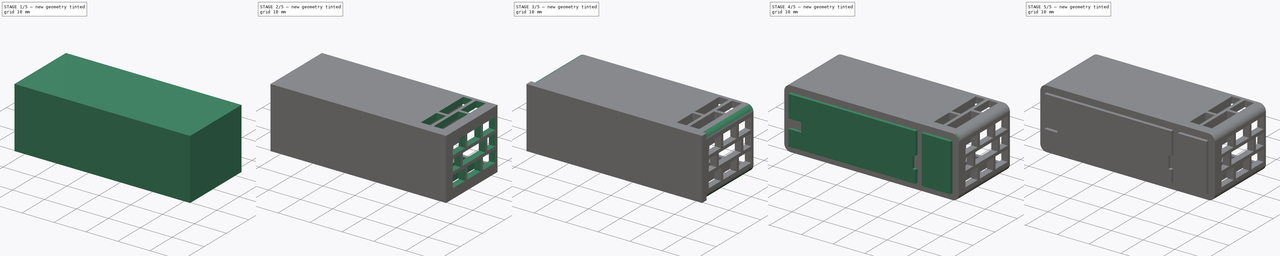
[diagram: build sequence overview — one tinted view per stage of 5, left to right]
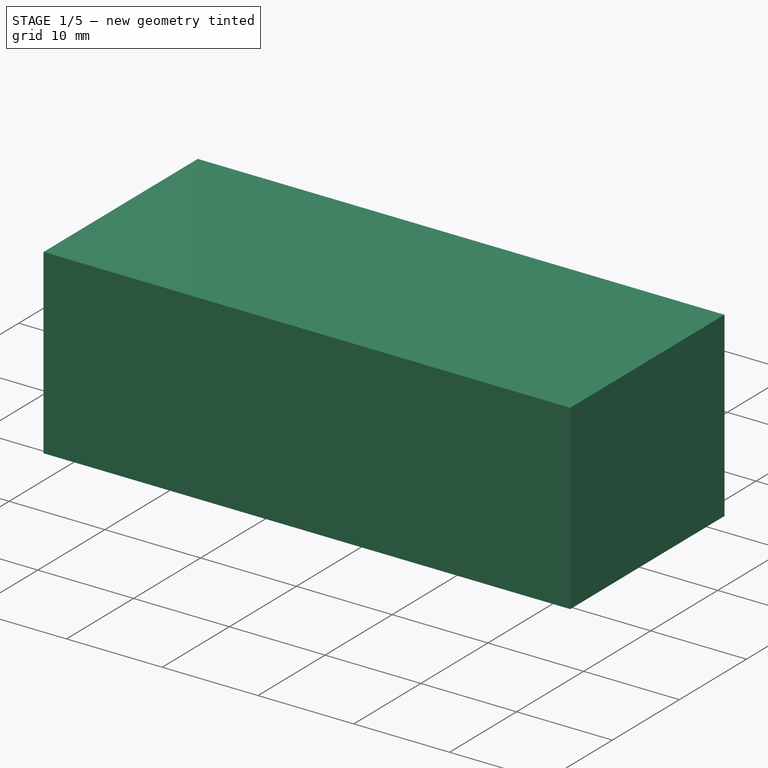
[diagram: stage 1 of 5 — iso view after this stage's code; geometry added in this stage tinted green]
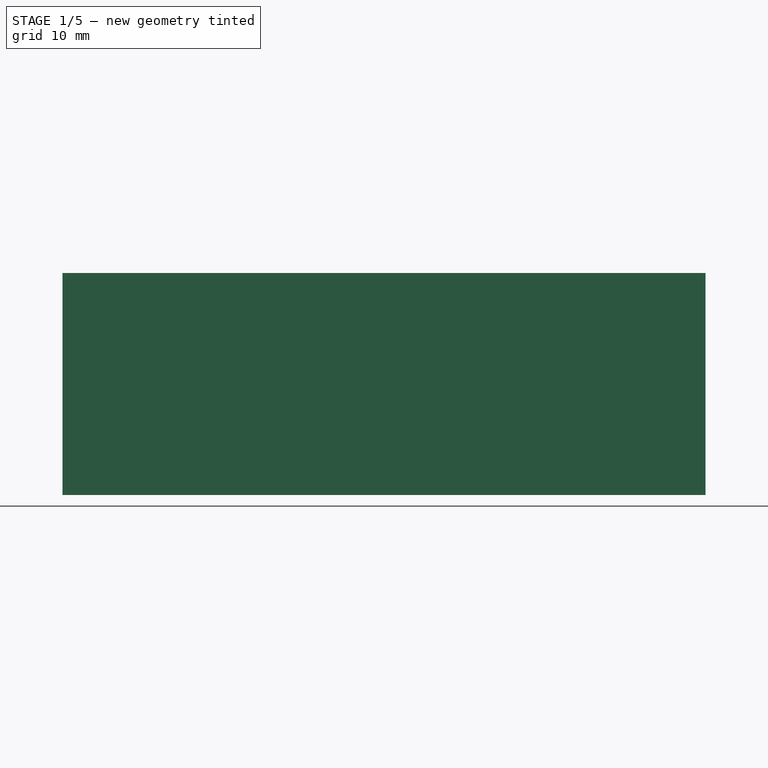
[diagram: stage 1 of 5 — front view after this stage's code; geometry added in this stage tinted green]
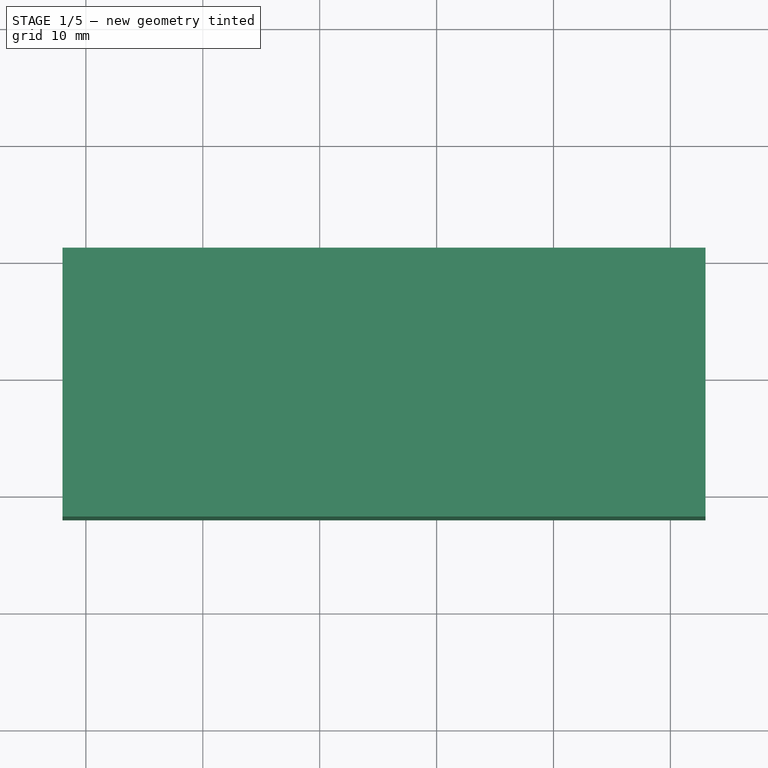
[diagram: stage 1 of 5 — top view after this stage's code; geometry added in this stage tinted green]
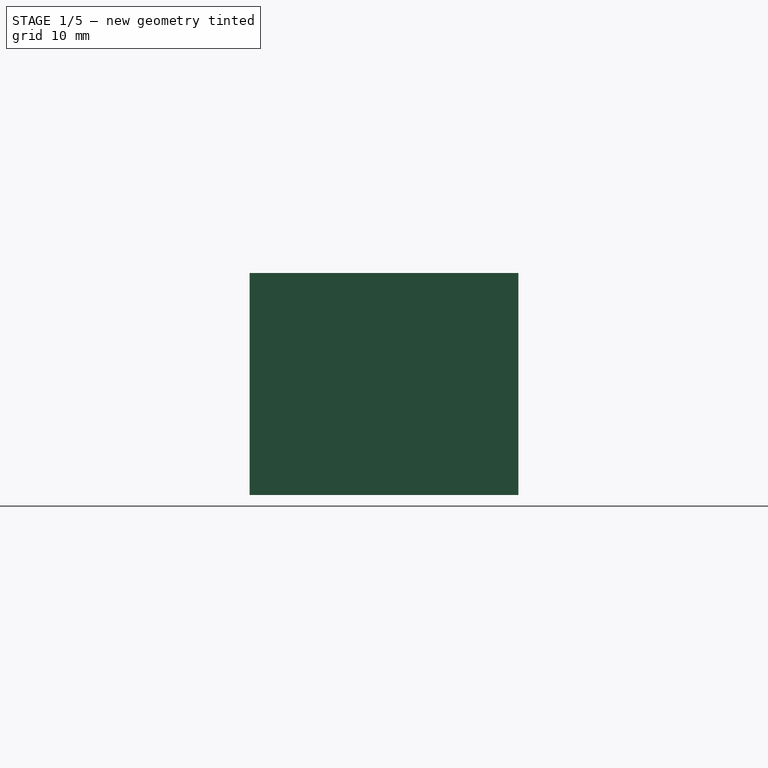
[diagram: stage 1 of 5 — right view after this stage's code; geometry added in this stage tinted green]
FCSTD DOCUMENT  (FreeCAD 0.20R29177 (Git))
Label: temperature_sensor_v2
License: All rights reserved
LicenseURL: http://en.wikipedia.org/wiki/All_rights_reserved
objects: PartDesign::AdditiveBox×6, PartDesign::Body×5, Sketcher::SketchObject×4, PartDesign::Pocket×4, PartDesign::Fillet×4, PartDesign::SubtractiveBox×2, PartDesign::Plane×2, PartDesign::Line×1, Part::Part2DObjectPython×1, PartDesign::Pad×1
note: 47 computed .brp shape members not serialized (recipe doc carries the construction recipe); baked Part::Feature solids carry a one-line shape summary decoded from their .brp

FEATURE [PartDesign::Body] Body002  label="BME280"
  Group = -> [Box003]
  Origin = -> Origin002
  Placement = pos=(46,1.5,13) rot=(0,1,0;1.5708rad)
  Tip = -> Box003
FEATURE [PartDesign::AdditiveBox] Box004
  AttacherType = Attacher::AttachEngine3D
  AttachmentOffset = pos=(-2,-2,-2) rot=(0,0,1;0rad)
  Height = 19
  Length = 55
  MapMode = 5
  Placement = pos=(-2,-2,-2) rot=(0,0,1;0rad)
  Support = -> [XY_Plane003]
  Width = 23
FEATURE [Sketcher::SketchObject] Sketch005
  ExternalGeometry = -> [Box004]
  FullyConstrained = true
  MapMode = 5
  Placement = pos=(-2,21,-2) rot=(0,0.707107,0.707107;3.14159rad)
  Support = -> [Box004]
  sketch-geometry (16):
    g0: LineSegment StartX=-2 StartY=2 StartZ=0 EndX=-2 EndY=7 EndZ=0
    g1: LineSegment StartX=-2 StartY=7 StartZ=0 EndX=-6 EndY=7 EndZ=0
    g2: LineSegment StartX=-6 StartY=7 StartZ=0 EndX=-6 EndY=10 EndZ=0
    g3: LineSegment StartX=-6 StartY=10 StartZ=0 EndX=-2 EndY=10 EndZ=0
    g4: LineSegment StartX=-2 StartY=10 StartZ=0 EndX=-2 EndY=17 EndZ=0
    g5: LineSegment StartX=-2 StartY=17 StartZ=0 EndX=-42 EndY=17 EndZ=0
    g6: LineSegment StartX=-53 StartY=17 StartZ=0 EndX=-53 EndY=2 EndZ=0
    g7: LineSegment StartX=-53 StartY=2 StartZ=0 EndX=-44 EndY=2 EndZ=0
    g8: LineSegment StartX=-44 StartY=17 StartZ=0 EndX=-44 EndY=2 EndZ=0
    g9: LineSegment StartX=-42 StartY=17 StartZ=0 EndX=-42 EndY=10 EndZ=0
    g10: LineSegment StartX=-44 StartY=17 StartZ=0 EndX=-53 EndY=17 EndZ=0
    g11: LineSegment StartX=-42 StartY=2 StartZ=0 EndX=-2 EndY=2 EndZ=0
    g12: LineSegment StartX=-42 StartY=6 StartZ=0 EndX=-41 EndY=6 EndZ=0
    g13: LineSegment StartX=-41 StartY=6 StartZ=0 EndX=-41 EndY=10 EndZ=0
    g14: LineSegment StartX=-41 StartY=10 StartZ=0 EndX=-42 EndY=10 EndZ=0
    g15: LineSegment StartX=-42 StartY=6 StartZ=0 EndX=-42 EndY=2 EndZ=0
  constraints (48):
    c: Coincident(g1,g0)
    c: Coincident(g2,g1)
    c: Vertical(g2)
    c: Coincident(g3,g2)
    c: Horizontal(g3)
    c: Coincident(g4,g3)
    c: Vertical(g4)
    c: Coincident(g5,g4)
    c: Horizontal(g5)
    c: Coincident(g6,g10)
    c: Vertical(g6)
    c: Coincident(g7,g6)
    c: Coincident(g11,g0)
    c: Horizontal(g7)
    c: Vertical(g8)
    c: Vertical(g9)
    c: Coincident(g5,g9)
    c: Coincident(g10,g8)
    c: Coincident(g7,g8)
    c: Coincident(g11,g15)
    c: Horizontal(g10)
    c: DistanceY(g6,g-4) = 2
    c: DistanceY(g-4,g6) = 2
    c: DistanceX(g-4,g6) = 2
    c: DistanceX(g8,g5) = 2
    c: DistanceX(g10,g10) = 9
    c: Coincident(g13,g12)
    c: Vertical(g13)
    c: Coincident(g14,g13)
    c: Coincident(g9,g14)
    c: Coincident(g15,g12)
    c: Horizontal(g7,g11)
    c: Horizontal(g8,g5)
    c: DistanceX(g0,g-1) = 2
    c: Vertical(g0)
    c: Horizontal(g1)
    c: DistanceY(g0,g0) = 5
    c: DistanceX(g1,g1) = 4
    c: DistanceY(g2,g2) = 3
    c: Horizontal(g11)
    c: Vertical(g9,g12)
    c: Vertical(g15)
    c: Horizontal(g14)
    c: Horizontal(g12)
    c: Horizontal(g13,g2)
    c: DistanceY(g13,g13) = 4
    c: DistanceX(g14,g14) = 1
    c: Vertical(g0,g3)
FEATURE [PartDesign::Pocket] Pocket
  BaseFeature = -> Box004
  Direction = (0,-1,2e-16)
  Length = 21
  Length2 = 5
  Placement = pos=(-2,-2,-2) rot=(0,0,1;0rad)
  Profile = -> Sketch005
  ReferenceAxis = -> Sketch005 [N_Axis]
  Type = 0
FEATURE [PartDesign::SubtractiveBox] Box006
  AttacherType = Attacher::AttachEngine3D
  AttachmentOffset = pos=(39,17,0) rot=(0,0,1;0rad)
  BaseFeature = -> Pocket
  Height = 4
  Length = 4
  MapMode = 5
  Placement = pos=(39,17,0) rot=(0,0,1;0rad)
  Support = -> [XY_Plane003]
  Width = 5
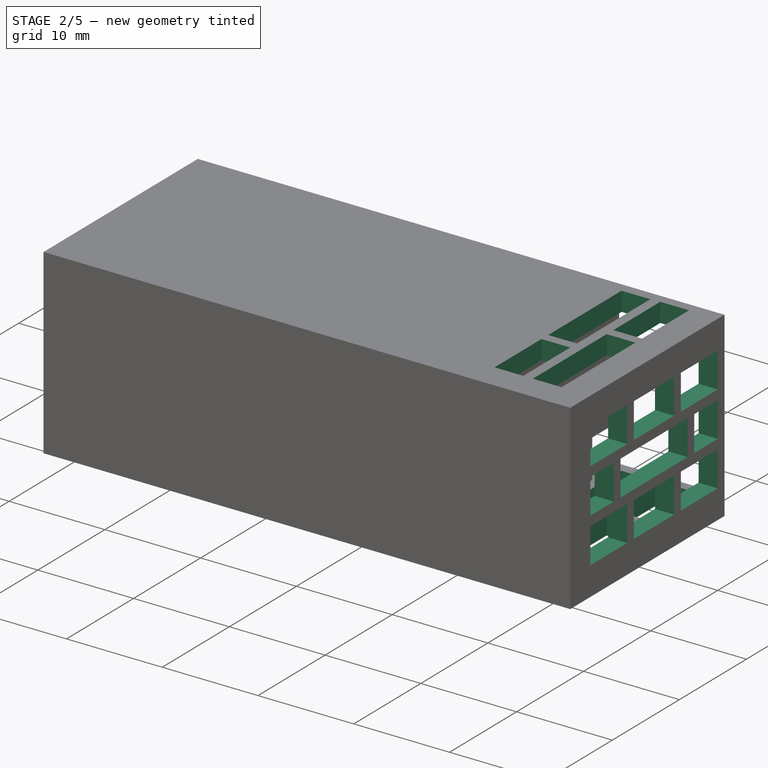
[diagram: stage 2 of 5 — iso view after this stage's code; geometry added in this stage tinted green]
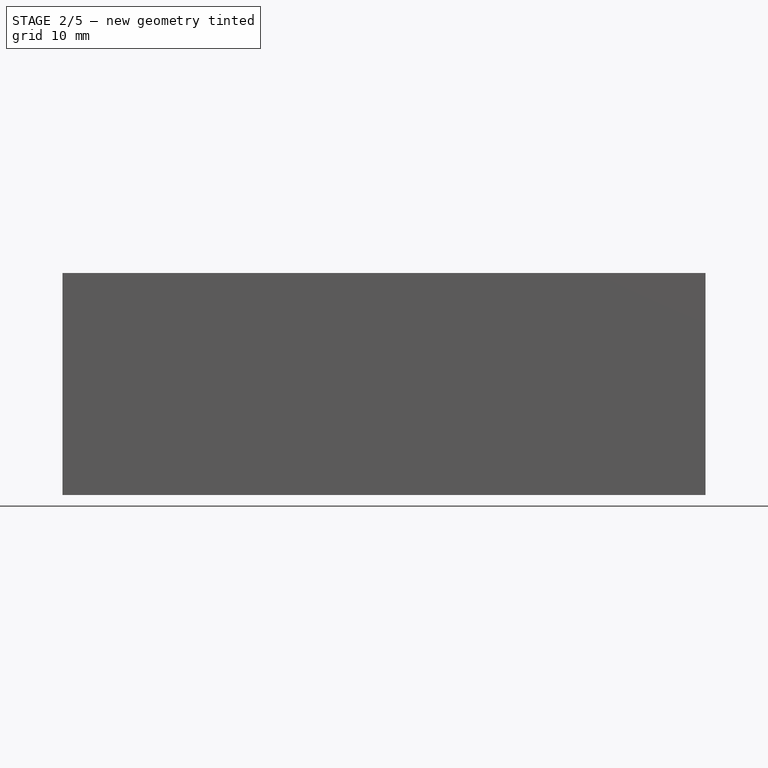
[diagram: stage 2 of 5 — front view after this stage's code; geometry added in this stage tinted green]
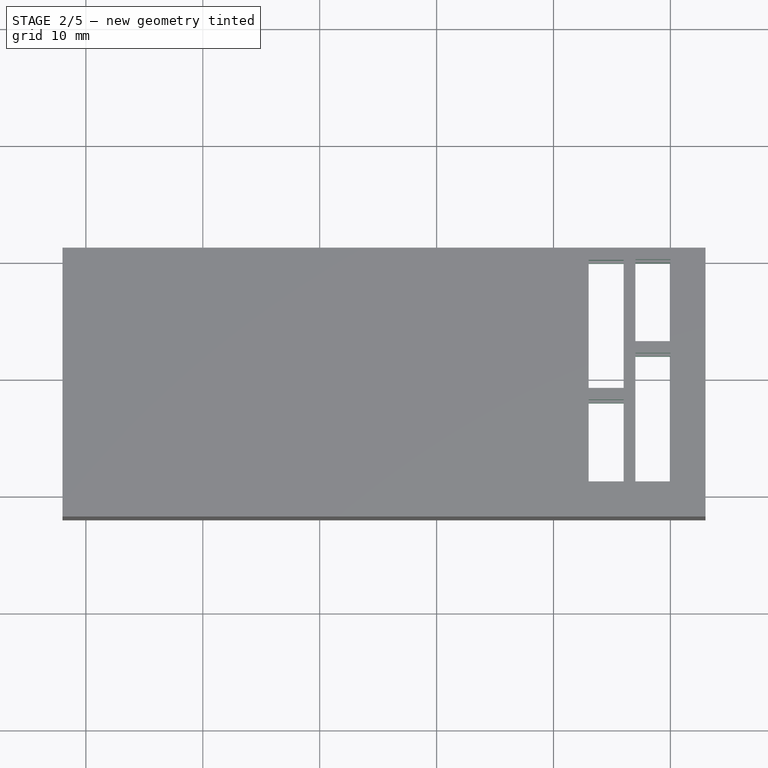
[diagram: stage 2 of 5 — top view after this stage's code; geometry added in this stage tinted green]
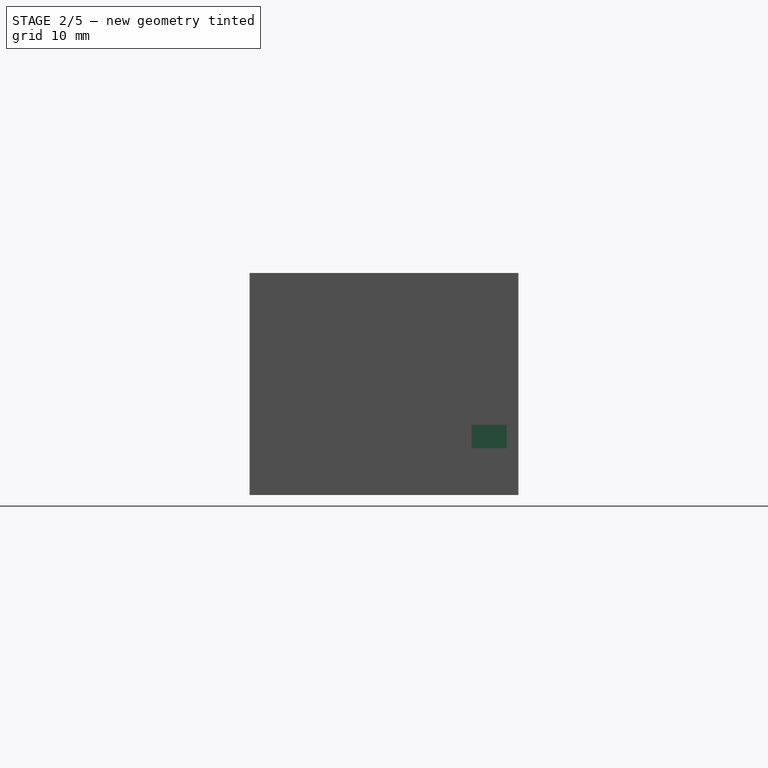
[diagram: stage 2 of 5 — right view after this stage's code; geometry added in this stage tinted green]
FEATURE [PartDesign::Line] DatumLine
  AttacherType = Attacher::AttachEngineLine
  AttachmentOffset = pos=(1,0,0) rot=(0,0,1;0rad)
  Length = 20
  MapMode = 42
  Placement = pos=(39,10.5,7.5) rot=(0.57735,0.57735,0.57735;2.0944rad)
  ResizeMode = 0
  Support = -> [Box006]
FEATURE [Sketcher::SketchObject] Sketch
  ExternalGeometry = -> [DatumLine]
  FullyConstrained = true
  MapMode = 5
  Placement = pos=(53,17,0) rot=(0.57735,0.57735,0.57735;2.0944rad)
  Support = -> [Box006]
  sketch-geometry (40):
    g0: LineSegment StartX=-17 StartY=15 StartZ=0 EndX=4 EndY=15 EndZ=0
    g1: LineSegment StartX=4 StartY=15 StartZ=0 EndX=4 EndY=0 EndZ=0
    g2: LineSegment StartX=4 StartY=0 StartZ=0 EndX=-17 EndY=0 EndZ=0
    g3: LineSegment StartX=-17 StartY=0 StartZ=0 EndX=-17 EndY=15 EndZ=0
    g4: LineSegment StartX=-16 StartY=14 StartZ=0 EndX=-10.5 EndY=14 EndZ=0
    g5: LineSegment StartX=3 StartY=14 StartZ=0 EndX=3 EndY=10.3333 EndZ=0
    g6: LineSegment StartX=3 StartY=10.3333 StartZ=0 EndX=-2.5 EndY=10.3333 EndZ=0
    g7: LineSegment StartX=-16 StartY=10.3333 StartZ=0 EndX=-16 EndY=14 EndZ=0
    g8: LineSegment StartX=-16 StartY=9.33333 StartZ=0 EndX=-12.5 EndY=9.33333 EndZ=0
    g9: LineSegment StartX=3 StartY=9.33333 StartZ=0 EndX=3 EndY=5.66667 EndZ=0
    g10: LineSegment StartX=3 StartY=5.66667 StartZ=0 EndX=-0.5 EndY=5.66667 EndZ=0
    g11: LineSegment StartX=-16 StartY=5.66667 StartZ=0 EndX=-16 EndY=9.33333 EndZ=0
    g12: LineSegment StartX=-16 StartY=4.66667 StartZ=0 EndX=-10.5 EndY=4.66667 EndZ=0
    g13: LineSegment StartX=3 StartY=4.66667 StartZ=0 EndX=3 EndY=1 EndZ=0
    g14: LineSegment StartX=3 StartY=1 StartZ=0 EndX=-2.5 EndY=1 EndZ=0
    g15: LineSegment StartX=-16 StartY=1 StartZ=0 EndX=-16 EndY=4.66667 EndZ=0
    g16: LineSegment StartX=-12.5 StartY=9.33333 StartZ=0 EndX=-12.5 EndY=5.66667 EndZ=0
    g17: LineSegment StartX=-11.5 StartY=5.66667 StartZ=0 EndX=-11.5 EndY=9.33333 EndZ=0
    g18: LineSegment StartX=-0.5 StartY=5.66667 StartZ=0 EndX=-0.5 EndY=9.33333 EndZ=0
    g19: LineSegment StartX=-1.5 StartY=9.33333 StartZ=0 EndX=-1.5 EndY=5.66667 EndZ=0
    g20: LineSegment StartX=-2.5 StartY=4.66667 StartZ=0 EndX=-2.5 EndY=1 EndZ=0
    g21: LineSegment StartX=-3.5 StartY=1 StartZ=0 EndX=-3.5 EndY=4.66667 EndZ=0
    g22: LineSegment StartX=-9.5 StartY=1 StartZ=0 EndX=-9.5 EndY=4.66667 EndZ=0
    g23: LineSegment StartX=-10.5 StartY=4.66667 StartZ=0 EndX=-10.5 EndY=1 EndZ=0
    g24: LineSegment StartX=-10.5 StartY=10.3333 StartZ=0 EndX=-10.5 EndY=14 EndZ=0
    g25: LineSegment StartX=-9.5 StartY=14 StartZ=0 EndX=-9.5 EndY=10.3333 EndZ=0
    g26: LineSegment StartX=-3.5 StartY=10.3333 StartZ=0 EndX=-3.5 EndY=14 EndZ=0
    g27: LineSegment StartX=-2.5 StartY=14 StartZ=0 EndX=-2.5 EndY=10.3333 EndZ=0
    g28: LineSegment StartX=-2.5 StartY=14 StartZ=0 EndX=3 EndY=14 EndZ=0
    g29: LineSegment StartX=-9.5 StartY=14 StartZ=0 EndX=-3.5 EndY=14 EndZ=0
    g30: LineSegment StartX=-10.5 StartY=10.3333 StartZ=0 EndX=-16 EndY=10.3333 EndZ=0
    g31: LineSegment StartX=-3.5 StartY=10.3333 StartZ=0 EndX=-9.5 EndY=10.3333 EndZ=0
    g32: LineSegment StartX=-0.5 StartY=9.33333 StartZ=0 EndX=3 EndY=9.33333 EndZ=0
    g33: LineSegment StartX=-1.5 StartY=5.66667 StartZ=0 EndX=-11.5 EndY=5.66667 EndZ=0
    g34: LineSegment StartX=-2.5 StartY=4.66667 StartZ=0 EndX=3 EndY=4.66667 EndZ=0
    g35: LineSegment StartX=-3.5 StartY=1 StartZ=0 EndX=-9.5 EndY=1 EndZ=0
    g36: LineSegment StartX=-10.5 StartY=1 StartZ=0 EndX=-16 EndY=1 EndZ=0
    g37: LineSegment StartX=-9.5 StartY=4.66667 StartZ=0 EndX=-3.5 EndY=4.66667 EndZ=0
    g38: LineSegment StartX=-12.5 StartY=5.66667 StartZ=0 EndX=-16 EndY=5.66667 EndZ=0
    g39: LineSegment StartX=-11.5 StartY=9.33333 StartZ=0 EndX=-1.5 EndY=9.33333 EndZ=0
  constraints (119):
    c: Coincident(g0,g1)
    c: Coincident(g1,g2)
    c: Coincident(g2,g3)
    c: Coincident(g3,g0)
    c: Horizontal(g0)
    c: Horizontal(g2)
    c: Vertical(g1)
    c: Vertical(g3)
    c: PointOnObject(g1,g-1)
    c: Symmetric(g0,g1,g-3)
    c: DistanceX(g2,g2) = 21
    c: Coincident(g28,g5)
    c: Coincident(g5,g6)
    c: Coincident(g30,g7)
    c: Coincident(g7,g4)
    c: Horizontal(g4)
    c: Horizontal(g6)
    c: Vertical(g5)
    c: Vertical(g7)
    c: Coincident(g32,g9)
    c: Coincident(g9,g10)
    c: Coincident(g38,g11)
    c: Coincident(g11,g8)
    c: Horizontal(g8)
    c: Horizontal(g10)
    c: Vertical(g9)
    c: Vertical(g11)
    c: Coincident(g34,g13)
    c: Coincident(g13,g14)
    c: Coincident(g36,g15)
    c: Coincident(g15,g12)
    c: Horizontal(g12)
    c: Horizontal(g14)
    c: Vertical(g13)
    c: Vertical(g15)
    c: Equal(g7,g11)
    c: Equal(g11,g15)
    c: DistanceY(g4,g0) = 1
    c: DistanceY(g2,g36) = 1
    c: DistanceY(g12,g38) = 1
    c: DistanceY(g8,g30) = 1
    c: DistanceX(g2,g36) = 1
    c: DistanceX(g13,g1) = 1
    c: Vertical(g38,g12)
    c: Vertical(g8,g30)
    c: Vertical(g34,g9)
    c: Vertical(g32,g5)
    c: Vertical(g16)
    c: Vertical(g17)
    c: Vertical(g18)
    c: Vertical(g19)
    c: Vertical(g20)
    c: Vertical(g22)
    c: Vertical(g23)
    c: Vertical(g24)
    c: Vertical(g25)
    c: Vertical(g26)
    c: Vertical(g27)
    c: DistanceX(g23,g22) = 1
    c: Vertical(g21)
    c: Coincident(g29,g26)
    c: Coincident(g28,g27)
    c: Coincident(g4,g24)
    c: Coincident(g29,g25)
    c: Coincident(g31,g25)
    c: Coincident(g30,g24)
    c: Coincident(g6,g27)
    c: Coincident(g31,g26)
    c: Coincident(g39,g19)
    c: Coincident(g32,g18)
    c: Coincident(g10,g18)
    c: Coincident(g33,g19)
    c: Coincident(g37,g21)
    c: Coincident(g34,g20)
    c: Coincident(g14,g20)
    c: Coincident(g35,g21)
    c: Coincident(g12,g23)
    c: Coincident(g37,g22)
    c: Coincident(g8,g16)
    c: Coincident(g39,g17)
    c: DistanceX(g21,g14) = 1
    c: Equal(g36,g14)
    c: DistanceX(g35,g35) = 6
    c: Coincident(g23,g36)
    c: Coincident(g35,g22)
    c: Horizontal(g21,g14)
    c: Horizontal(g35)
    c: Horizontal(g23,g22)
    c: Horizontal(g36)
    c: Horizontal(g12,g22)
    c: Horizontal(g37)
    c: Horizontal(g21,g20)
    c: Horizontal(g34)
    c: Vertical(g12,g24)
    c: Vertical(g22,g25)
    c: Vertical(g26,g21)
    c: Vertical(g20,g6)
    c: Horizontal(g4,g25)
    c: Horizontal(g29)
    c: Horizontal(g26,g27)
    c: Horizontal(g28)
    c: Horizontal(g24,g25)
    c: Horizontal(g31)
    c: Horizontal(g30)
    c: Horizontal(g26,g6)
    c: DistanceX(g8,g17) = 1
    c: DistanceX(g19,g18) = 1
    c: DistanceX(g39,g39) = 10
    c: Equal(g8,g32)
    c: Coincident(g38,g16)
    c: Coincident(g33,g17)
    c: Horizontal(g38)
    c: Horizontal(g16,g17)
    c: Horizontal(g33)
    c: Horizontal(g19,g10)
    c: Horizontal(g8,g17)
    c: Horizontal(g39)
    c: Horizontal(g19,g18)
    c: Horizontal(g32)
FEATURE [PartDesign::Pocket] Pocket001
  BaseFeature = -> Box006
  Direction = (-1,0,0)
  Length = 5
  Length2 = 5
  Placement = pos=(39,17,0) rot=(0,0,1;0rad)
  Profile = -> Sketch
  ReferenceAxis = -> Sketch [N_Axis]
  Type = 0
FEATURE [PartDesign::Plane] DatumPlane
  Length = 62.49
  MapMode = 3
  Placement = pos=(39,10.5,7.5) rot=(0.707107,0.707107,0;3.14159rad)
  ResizeMode = 0
  Support = -> [DatumLine]
  Width = 90.49
FEATURE [Sketcher::SketchObject] Sketch006
  ExternalGeometry = -> [Pocket001]
  FullyConstrained = false
  MapMode = 5
  Placement = pos=(39,10.5,7.5) rot=(0.707107,0.707107,0;3.14159rad)
  Support = -> [DatumPlane]
  sketch-geometry (16):
    g0: LineSegment StartX=-9.5 StartY=11 StartZ=0 EndX=1.5 EndY=11 EndZ=0
    g1: LineSegment StartX=9.5 StartY=11 StartZ=0 EndX=9.5 EndY=8 EndZ=0
    g2: LineSegment StartX=9.43937 StartY=4 StartZ=0 EndX=-1.5 EndY=4 EndZ=0
    g3: LineSegment StartX=-9.5 StartY=4 StartZ=0 EndX=-9.5 EndY=7 EndZ=0
    g4: LineSegment StartX=-2.5 StartY=4 StartZ=0 EndX=-2.5 EndY=7 EndZ=0
    g5: LineSegment StartX=-1.5 StartY=4 StartZ=0 EndX=-1.5 EndY=7 EndZ=0
    g6: LineSegment StartX=2.5 StartY=11 StartZ=0 EndX=9.5 EndY=11 EndZ=0
    g7: LineSegment StartX=-2.5 StartY=4 StartZ=0 EndX=-9.5 EndY=4 EndZ=0
    g8: LineSegment StartX=-9.5 StartY=8 StartZ=0 EndX=1.5 EndY=8 EndZ=0
    g9: LineSegment StartX=-9.5 StartY=7 StartZ=0 EndX=-2.5 EndY=7 EndZ=0
    g10: LineSegment StartX=1.5 StartY=8 StartZ=0 EndX=1.5 EndY=11 EndZ=0
    g11: LineSegment StartX=2.5 StartY=8 StartZ=0 EndX=2.5 EndY=11 EndZ=0
    g12: LineSegment StartX=9.43937 StartY=7 StartZ=0 EndX=9.43937 EndY=4 EndZ=0
    g13: LineSegment StartX=-9.5 StartY=8 StartZ=0 EndX=-9.5 EndY=11 EndZ=0
    g14: LineSegment StartX=-1.5 StartY=7 StartZ=0 EndX=9.43937 EndY=7 EndZ=0
    g15: LineSegment StartX=2.5 StartY=8 StartZ=0 EndX=9.5 EndY=8 EndZ=0
  constraints (45):
    c: Coincident(g6,g1)
    c: Coincident(g12,g2)
    c: Coincident(g7,g3)
    c: Coincident(g13,g0)
    c: Horizontal(g2)
    c: Vertical(g1)
    c: Vertical(g3)
    c: DistanceX(g-3,g7) = 1
    c: DistanceY(g-3,g7) = 1
    c: DistanceY(g0,g-3) = 1
    c: Symmetric(g0,g6,g-2)
    c: Vertical(g4)
    c: Vertical(g5)
    c: Coincident(g0,g10)
    c: Coincident(g6,g11)
    c: Coincident(g2,g5)
    c: Coincident(g7,g4)
    c: Horizontal(g6)
    c: Horizontal(g7)
    c: Horizontal(g4,g2)
    c: DistanceX(g4,g2) = 1
    c: Horizontal(g8)
    c: Horizontal(g9)
    c: Coincident(g1,g15)
    c: Coincident(g12,g14)
    c: Coincident(g3,g9)
    c: Coincident(g13,g8)
    c: Coincident(g9,g4)
    c: Coincident(g14,g5)
    c: Coincident(g8,g10)
    c: Coincident(g15,g11)
    c: Equal(g12,g1)
    c: DistanceY(g12,g1) = 1
    c: Horizontal(g15)
    c: Horizontal(g14)
    c: Horizontal(g4,g5)
    c: Horizontal(g0)
    c: Horizontal(g8,g11)
    c: DistanceX(g0,g6) = 1
    c: Vertical(g10)
    c: Vertical(g11)
    c: Vertical(g13)
    c: Vertical(g8,g3)
    c: Equal(g7,g6)
    c: DistanceX(g0,g0) = 11
FEATURE [PartDesign::Pocket] Pocket002
  BaseFeature = -> Pocket001
  Direction = (0,0,1)
  Length = 5
  Length2 = 5
  Midplane = true
  Placement = pos=(39,17,0) rot=(0,0,1;0rad)
  Profile = -> Sketch006
  ReferenceAxis = -> Sketch006 [N_Axis]
  Type = 1
FEATURE [PartDesign::Body] Body004  label="CaseCap"
  Group = -> [Box005,Clone2D,Pad,Fillet002,Fillet003]
  Origin = -> Origin004
  Placement = pos=(0,23,0) rot=(0,0,1;0rad)
  Tip = -> Fillet003
FEATURE [PartDesign::Plane] DatumPlane001
  Length = 62.49
  MapMode = 4
  Placement = pos=(39,10.5,7.5) rot=(0.57735,0.57735,0.57735;4.18879rad)
  ResizeMode = 0
  Support = -> [DatumLine]
  Width = 90.49
FEATURE [Sketcher::SketchObject] Sketch007
  ExternalGeometry = -> [DatumPlane001]
  FullyConstrained = true
  MapMode = 5
  Placement = pos=(-2,17,0) rot=(0.57735,-0.57735,-0.57735;2.0944rad)
  Support = -> [Pocket002]
  sketch-geometry (6):
    g0: LineSegment StartX=2.5 StartY=5 StartZ=0 EndX=10.5 EndY=5 EndZ=0
    g1: LineSegment StartX=10.5 StartY=5 StartZ=0 EndX=10.5 EndY=3 EndZ=0
    g2: LineSegment StartX=10.5 StartY=3 StartZ=0 EndX=9.5 EndY=2 EndZ=0
    g3: LineSegment StartX=9.5 StartY=2 StartZ=0 EndX=3.5 EndY=2 EndZ=0
    g4: LineSegment StartX=3.5 StartY=2 StartZ=0 EndX=2.5 EndY=3 EndZ=0
    g5: LineSegment StartX=2.5 StartY=3 StartZ=0 EndX=2.5 EndY=5 EndZ=0
  constraints (15):
    c: Coincident(g1,g0)
    c: Vertical(g1)
    c: Coincident(g2,g1)
    c: Coincident(g3,g2)
    c: Coincident(g4,g3)
    c: Coincident(g5,g4)
    c: Coincident(g5,g0)
    c: Symmetric(g0,g0,g-3)
    c: Symmetric(g4,g1,g-3)
    c: Symmetric(g2,g3,g-3)
    c: DistanceX(g0,g0) = 8
    c: DistanceY(g5,g5) = 2
    c: DistanceY(g3,g4) = 1
    c: DistanceX(g3,g3) = 6
    c: DistanceY(g-1,g0) = 5
FEATURE [PartDesign::Pocket] Pocket003
  BaseFeature = -> Pocket002
  Direction = (1,0,0)
  Length = 2
  Length2 = 5
  Placement = pos=(39,17,0) rot=(0,0,1;0rad)
  Profile = -> Sketch007
  ReferenceAxis = -> Sketch007 [N_Axis]
  Type = 0
FEATURE [PartDesign::SubtractiveBox] Box007
  AttacherType = Attacher::AttachEngine3D
  AttachmentOffset = pos=(-1,12,2) rot=(0,0,1;0rad)
  BaseFeature = -> Pocket003
  Height = 3
  Length = 2
  MapMode = 5
  Placement = pos=(-1,12,2) rot=(0,0,1;0rad)
  Support = -> [XY_Plane003]
  Width = 10
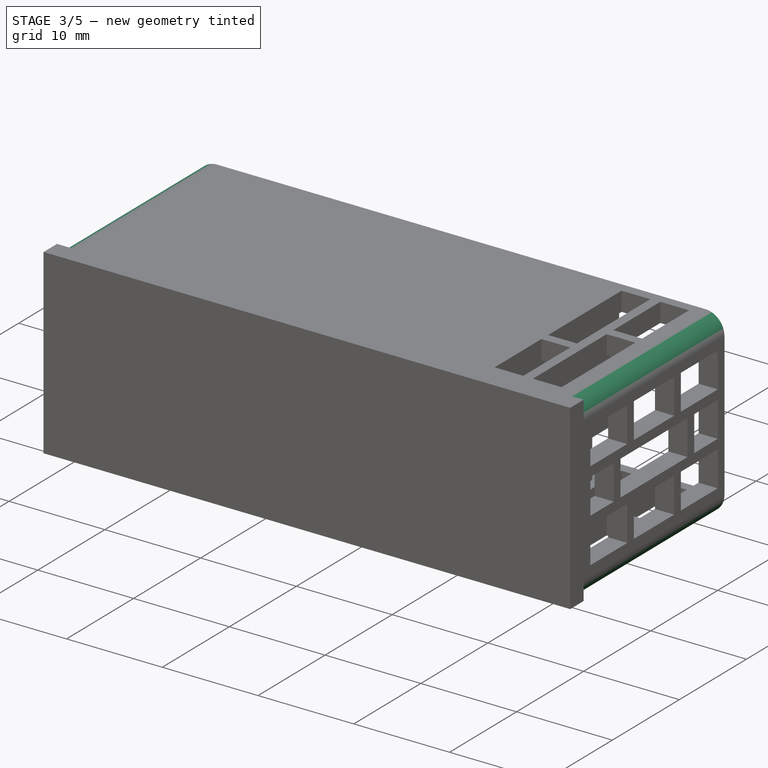
[diagram: stage 3 of 5 — iso view after this stage's code; geometry added in this stage tinted green]
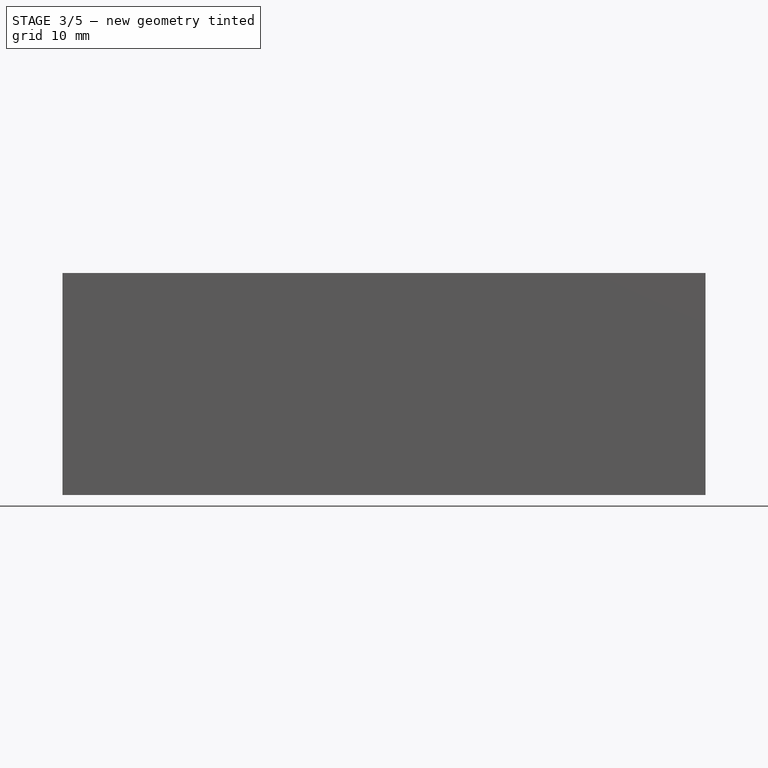
[diagram: stage 3 of 5 — front view after this stage's code; geometry added in this stage tinted green]
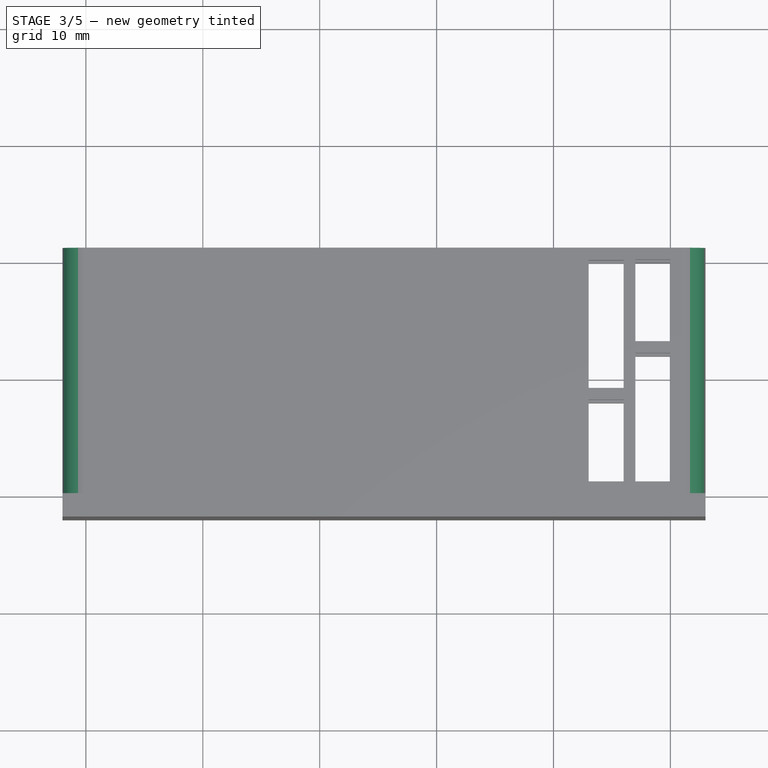
[diagram: stage 3 of 5 — top view after this stage's code; geometry added in this stage tinted green]
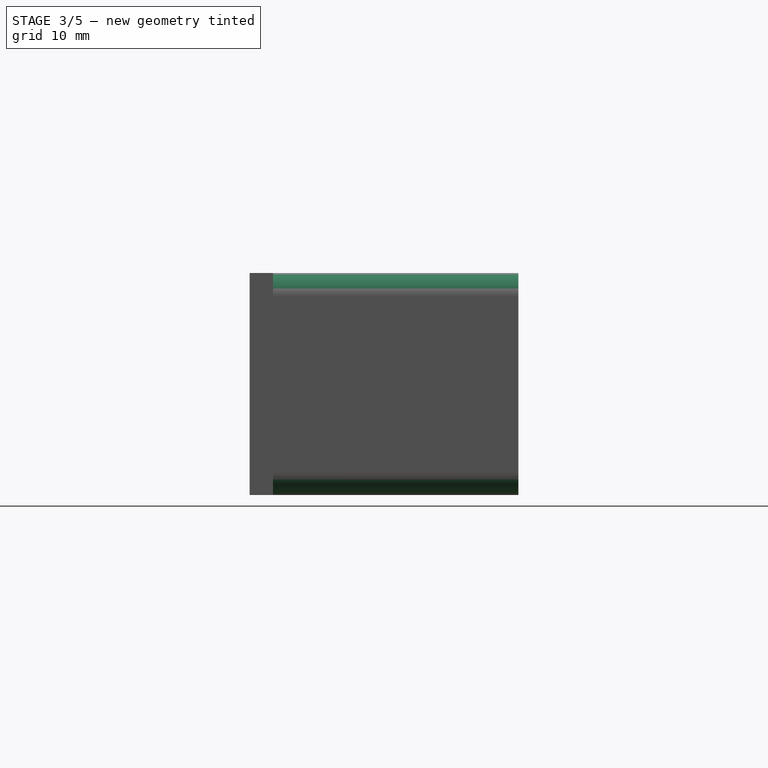
[diagram: stage 3 of 5 — right view after this stage's code; geometry added in this stage tinted green]
FEATURE [PartDesign::AdditiveBox] Box005
  AttacherType = Attacher::AttachEngine3D
  AttachmentOffset = pos=(-2,-2,-2) rot=(0,0,1;0rad)
  Height = 19
  Length = 55
  MapMode = 5
  Placement = pos=(-2,-2,-2) rot=(0,0,1;0rad)
  Support = -> [XY_Plane004]
  Width = 2
FEATURE [PartDesign::Fillet] Fillet
  Base = -> Box007 [Edge2,Edge3,Edge15,Edge33]
  BaseFeature = -> Box007
  Placement = pos=(-1,12,2) rot=(0,0,1;0rad)
  Radius = 2
  SupportTransform = false
  UseAllEdges = false
FEATURE [PartDesign::Fillet] Fillet004
  Base = -> Fillet [Face2]
  BaseFeature = -> Fillet
  Placement = pos=(-1,12,2) rot=(0,0,1;0rad)
  Radius = 1
  SupportTransform = false
  UseAllEdges = false
FEATURE [PartDesign::Body] Body003  label="CaseBody"
  Group = -> [Box004,Sketch005,Pocket,Box006,DatumLine,Sketch,Pocket001,DatumPlane,Sketch006,Pocket002,DatumPlane001,Sketch007,Pocket003,Box007,Fillet,Fillet004]
  Origin = -> Origin003
  Tip = -> Fillet004
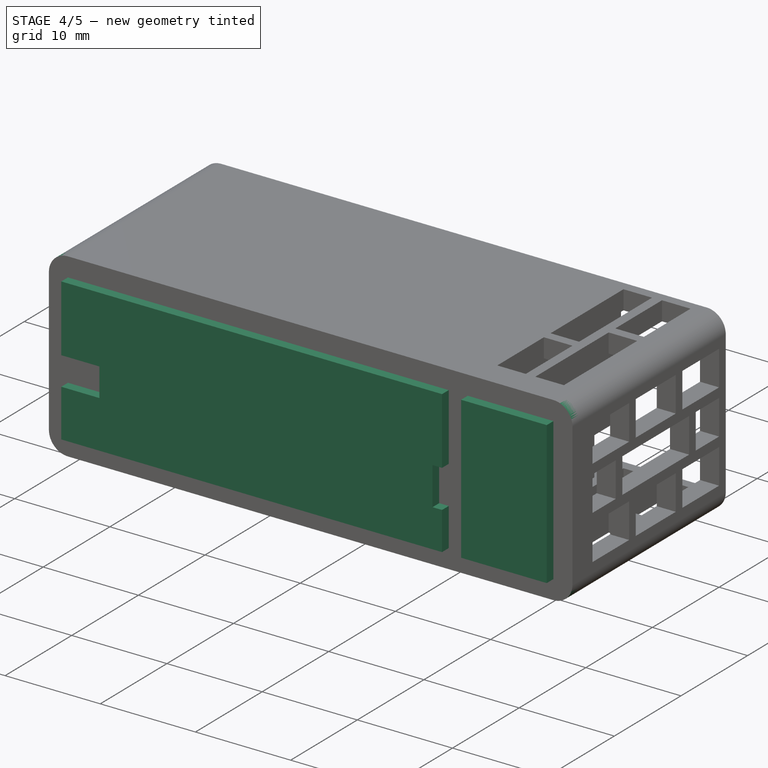
[diagram: stage 4 of 5 — iso view after this stage's code; geometry added in this stage tinted green]
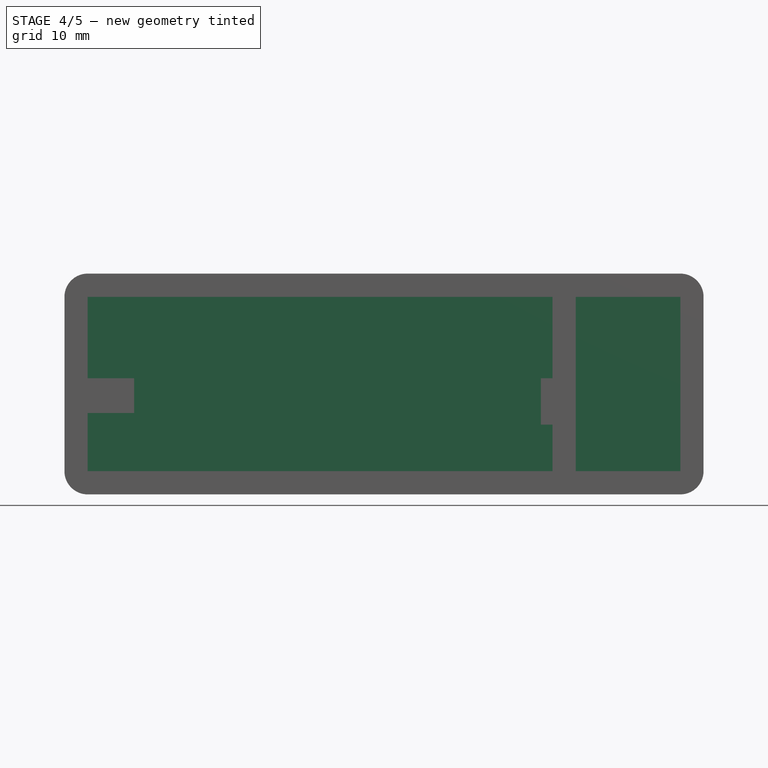
[diagram: stage 4 of 5 — front view after this stage's code; geometry added in this stage tinted green]
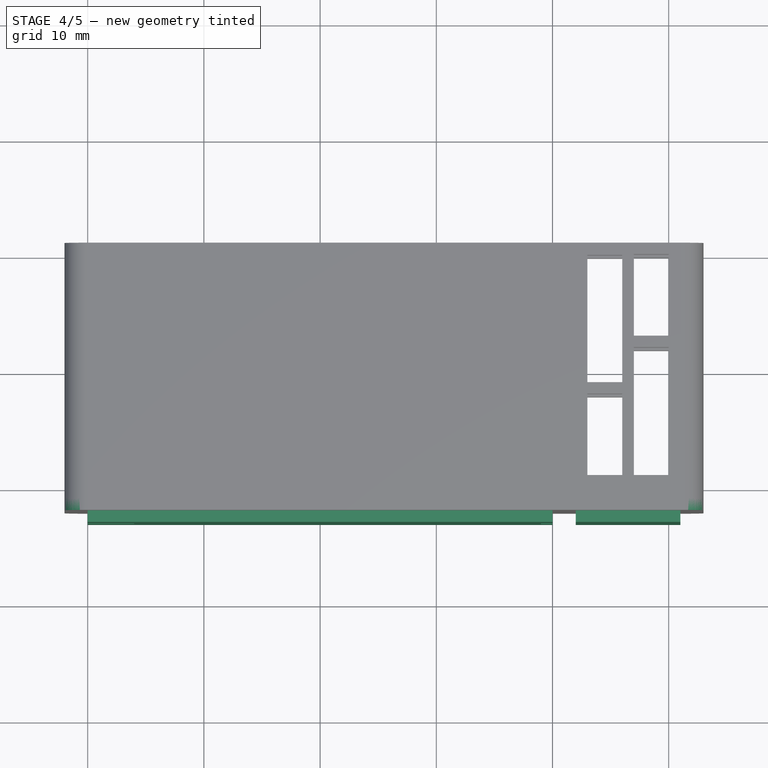
[diagram: stage 4 of 5 — top view after this stage's code; geometry added in this stage tinted green]
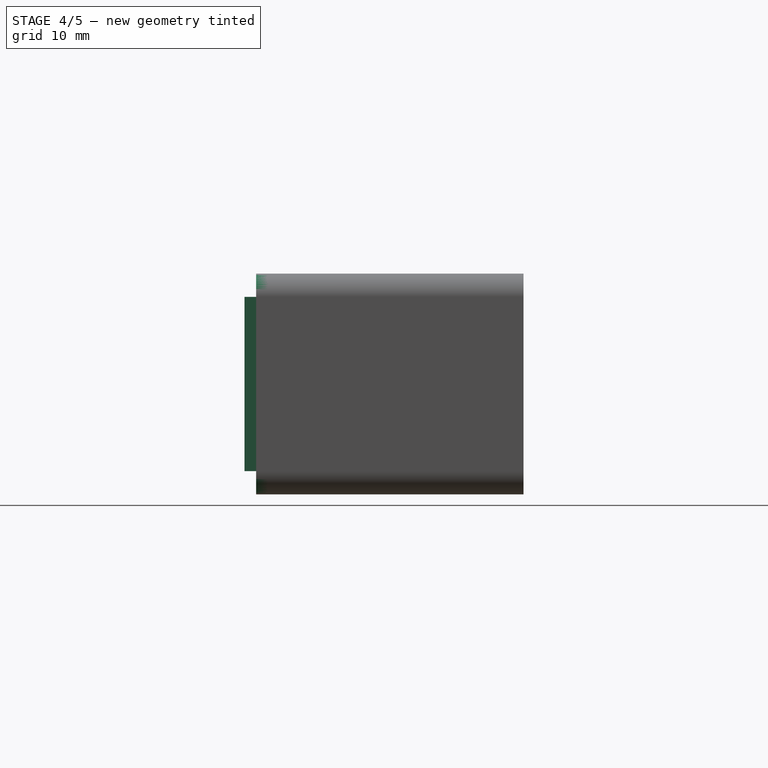
[diagram: stage 4 of 5 — right view after this stage's code; geometry added in this stage tinted green]
FEATURE [PartDesign::Body] Body001  label="JDY34"
  Group = -> [Box002]
  Origin = -> Origin001
  Placement = pos=(2,1,8) rot=(0,0,1;0rad)
  Tip = -> Box002
FEATURE [PartDesign::AdditiveBox] Box003
  AttacherType = Attacher::AttachEngine3D
  Height = 3
  Length = 13
  MapMode = 5
  Support = -> [XY_Plane002]
  Width = 16
FEATURE [Part::Part2DObjectPython] Clone2D  label="Sketch005 (2D)"  # Draft 2D object (typed FeaturePython)
  Fuse = false
  MapMode = 5
  Objects = -> [Sketch005]
  Placement = pos=(-2,-2,-2) rot=(0,0.707107,0.707107;3.14159rad)
  Scale = (1,1,1)
FEATURE [PartDesign::Pad] Pad
  BaseFeature = -> Box005
  Direction = (1e-16,1,-2e-16)
  Length = 1
  Length2 = 10
  Placement = pos=(-2,-2,-2) rot=(0,0,1;0rad)
  Profile = -> Clone2D
  ReferenceAxis = -> Clone2D [N_Axis]
  Reversed = true
  Type = 0
FEATURE [PartDesign::Fillet] Fillet002
  Base = -> Pad [Edge4,Edge2,Edge25,Edge28]
  BaseFeature = -> Pad
  Placement = pos=(-2,-2,-2) rot=(0,0,1;0rad)
  Radius = 2
  SupportTransform = false
  UseAllEdges = false
FEATURE [PartDesign::Fillet] Fillet003
  Base = -> Fillet002 [Face5]
  BaseFeature = -> Fillet002
  Placement = pos=(-2,-2,-2) rot=(0,0,1;0rad)
  Radius = 1
  SupportTransform = false
  UseAllEdges = false
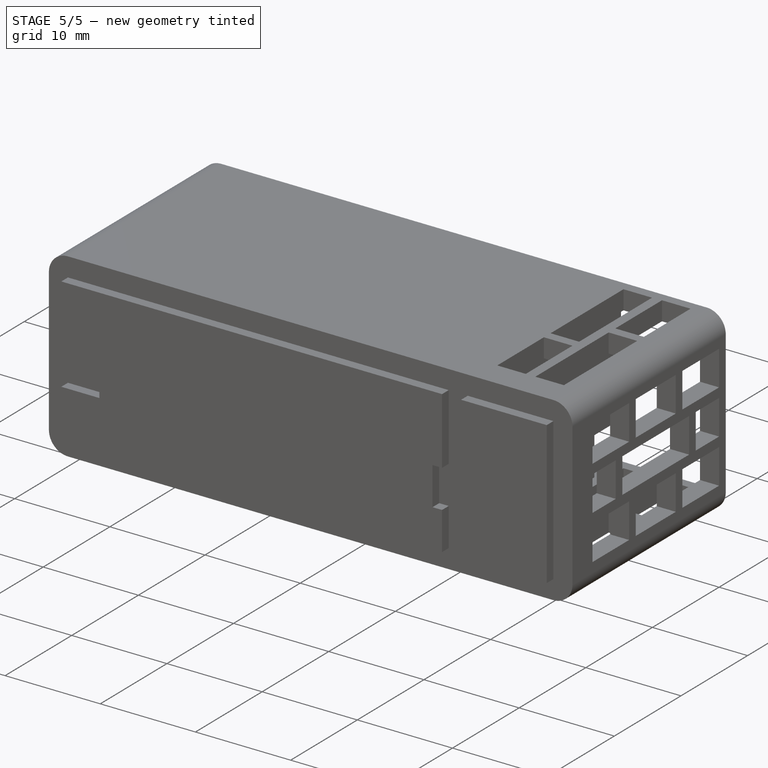
[diagram: stage 5 of 5 — iso view after this stage's code; geometry added in this stage tinted green]
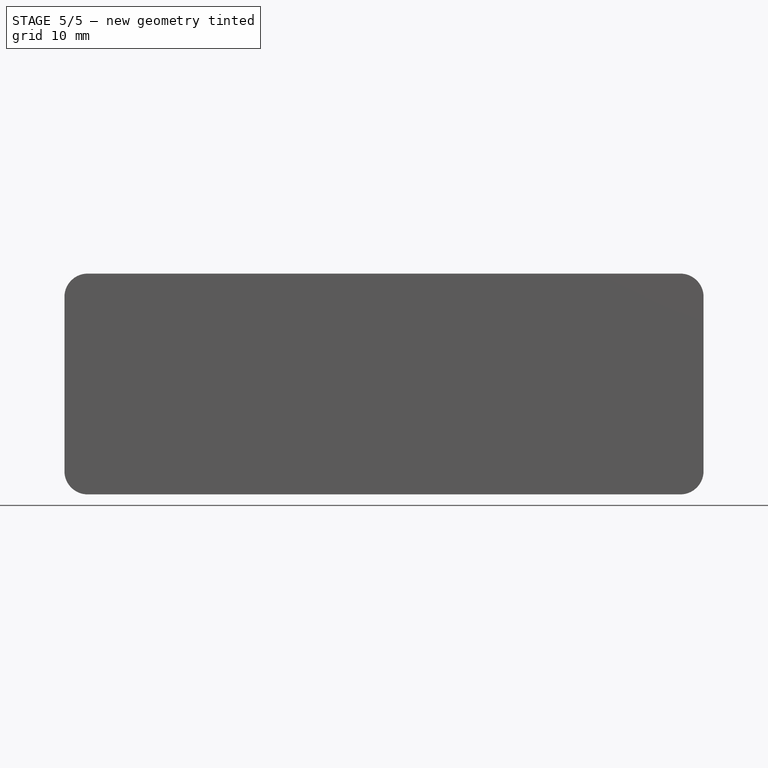
[diagram: stage 5 of 5 — front view after this stage's code; geometry added in this stage tinted green]
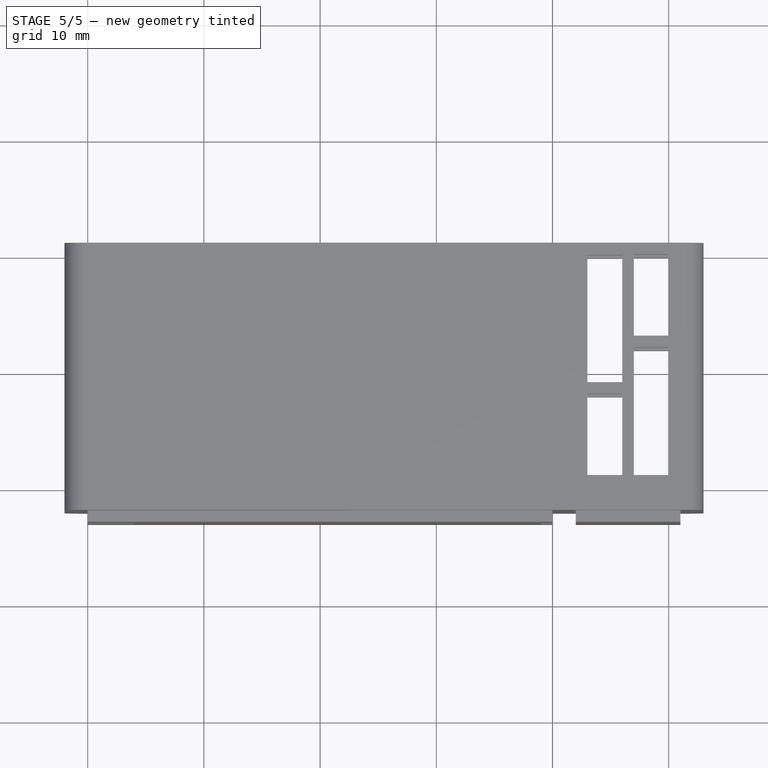
[diagram: stage 5 of 5 — top view after this stage's code; geometry added in this stage tinted green]
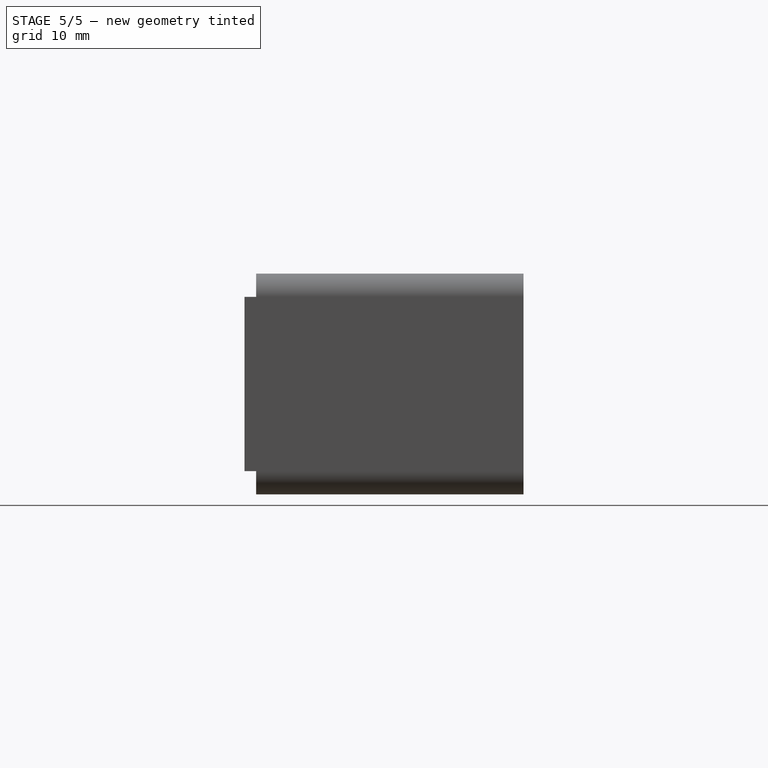
[diagram: stage 5 of 5 — right view after this stage's code; geometry added in this stage tinted green]
FEATURE [PartDesign::AdditiveBox] Box
  AttacherType = Attacher::AttachEngine3D
  Height = 4
  Length = 40
  Width = 19
FEATURE [PartDesign::AdditiveBox] Box001
  AttacherType = Attacher::AttachEngine3D
  AttachmentOffset = pos=(-1,5,2) rot=(0,0,1;0rad)
  BaseFeature = -> Box
  Height = 3
  Length = 6
  MapMode = 5
  Placement = pos=(-1,5,2) rot=(0,0,1;0rad)
  Support = -> [XY_Plane]
  Width = 8
FEATURE [PartDesign::Body] Body  label="STM32"
  Group = -> [Box,Box001]
  Origin = -> Origin
  Tip = -> Box001
FEATURE [PartDesign::AdditiveBox] Box002
  AttacherType = Attacher::AttachEngine3D
  Height = 5
  Length = 38
  MapMode = 5
  Support = -> [XY_Plane001]
  Width = 17
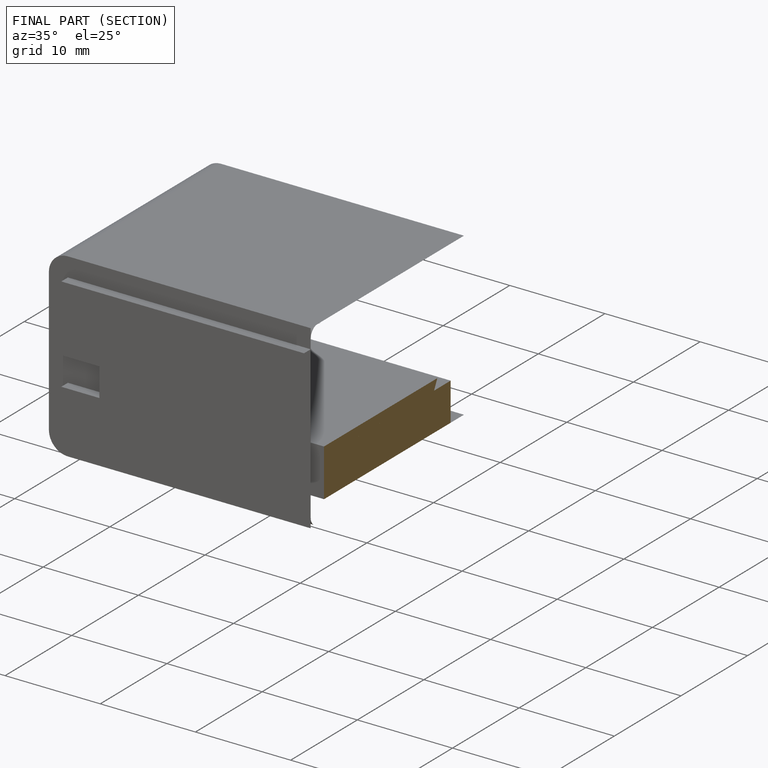
[diagram: finished part — half-section view (interior)]
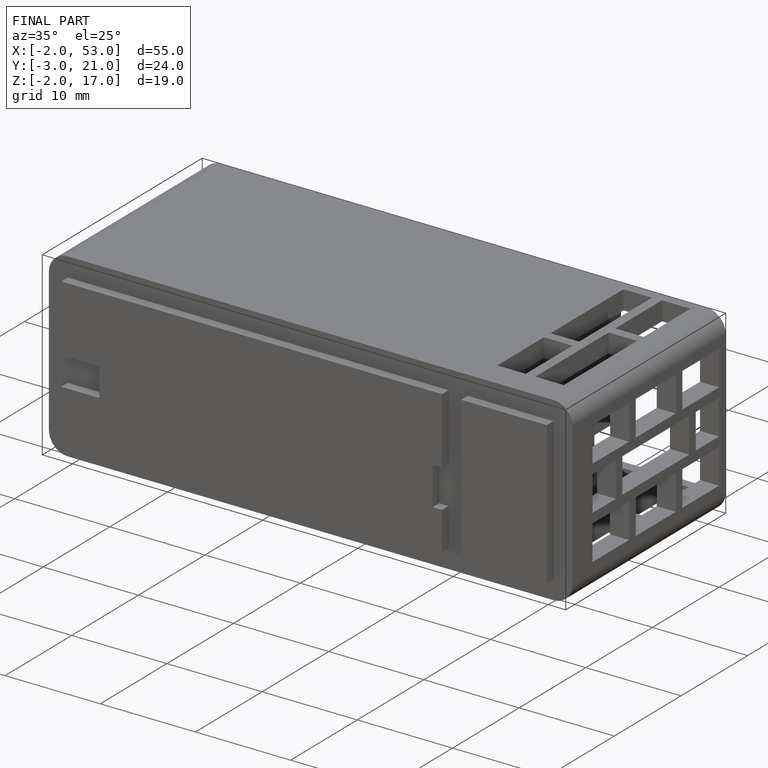
[diagram: finished part — iso view with bounding-box wireframe]
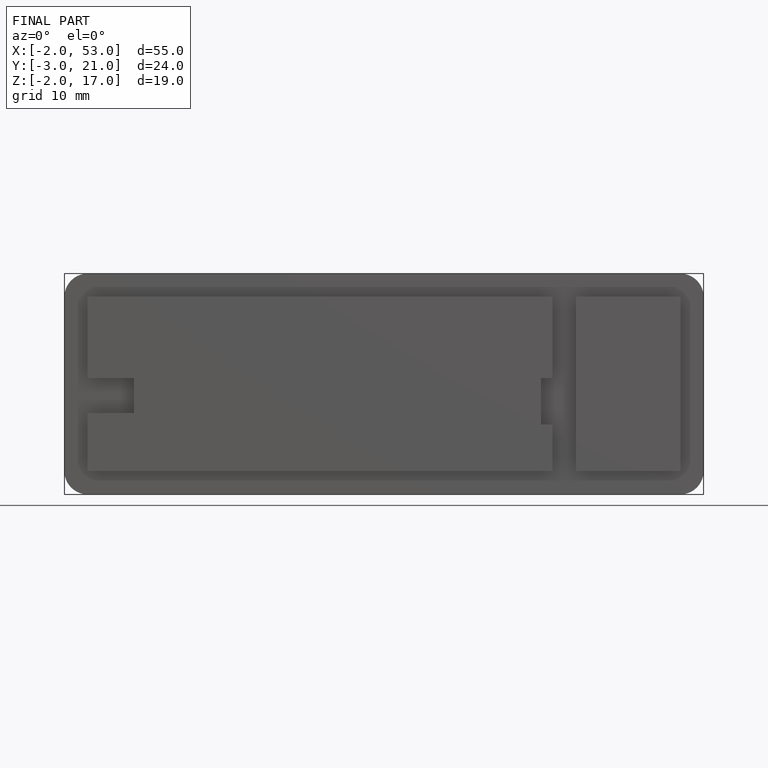
[diagram: finished part — front view with bounding-box wireframe]
